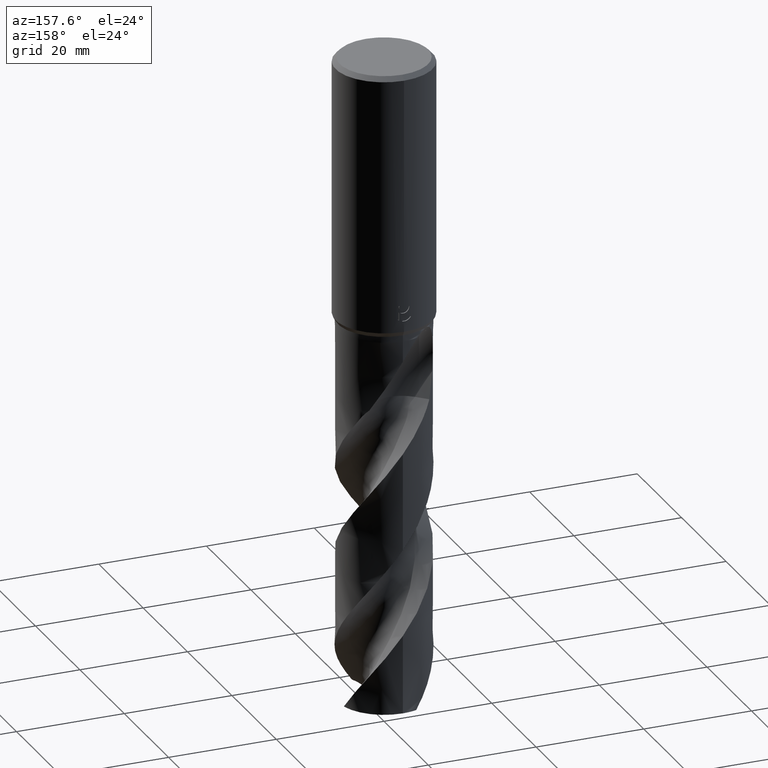
[diagram: clean part render]
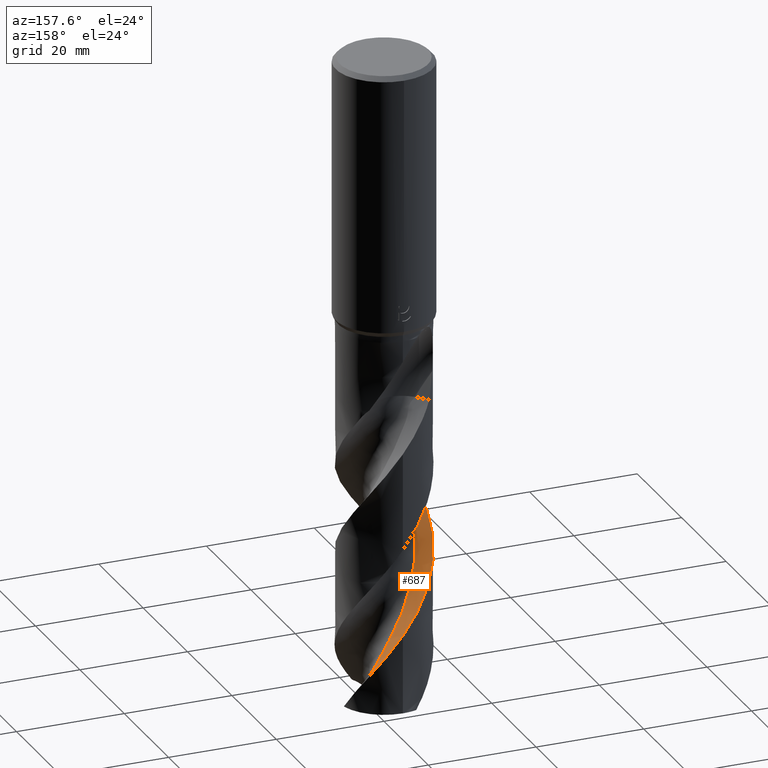
[diagram: same view with one face highlighted and labeled with its STEP entity id]
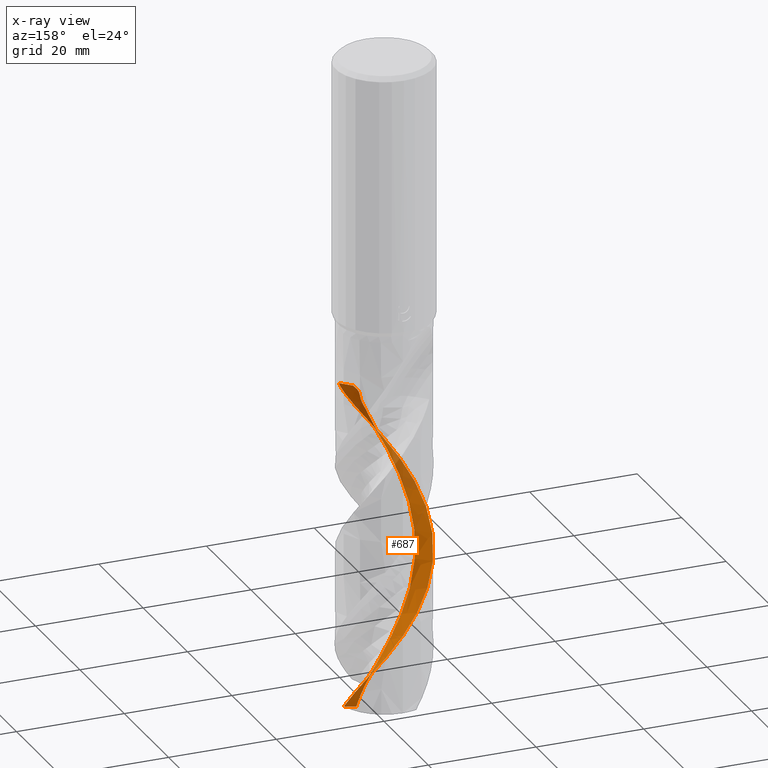
[diagram: x-ray of the same camera — body ghosted, the highlighted face saturated]
A machine part, auxiliary view. The second image highlights one B-rep face of the part: STEP entity #687.
The next image is the same camera in x-ray: the body ghosted, the highlighted face saturated — about 13% of this face is hidden behind the body in this view.
In plain terms, the highlighted face is a freeform B-spline surface patch.
Its self-contained STEP definition (entity closure, byte-faithful):
#283=EDGE_CURVE('',#635,#407,#790,.T.);
#313=VERTEX_POINT('',#822);
#357=VERTEX_POINT('',#874);
#395=EDGE_CURVE('',#629,#635,#915,.T.);
#407=VERTEX_POINT('',#929);
#471=EDGE_CURVE('',#407,#313,#1001,.T.);
#525=VERTEX_POINT('',#1060);
#595=EDGE_CURVE('',#629,#525,#1135,.T.);
#629=VERTEX_POINT('',#1172);
#635=VERTEX_POINT('',#1179);
#687=ADVANCED_FACE('',(#1234),#1235,.F.);
#691=EDGE_CURVE('',#357,#525,#1240,.T.);
#703=EDGE_CURVE('',#313,#357,#1253,.T.);
#790=B_SPLINE_CURVE_WITH_KNOTS('',3,(#1339,#1340,#1341,#1342,#1343,#1344,#1345,#1346,#1347,#1348,#1349,#1350,#1351,#1352,#1353,#1354,#1355,#1356,#1357,#1358,#1359,#1360,#1361,#1362,#1363,#1364,#1365,#1366,#1367,#1368,#1369,#1370,#1371,#1372,#1373,#1374,#1375,#1376,#1377,#1378,#1379,#1380,#1381,#1382,#1383,#1384,#1385,#1386,#1387,#1388,#1389,#1390,#1391,#1392,#1393,#1394,#1395,#1396,#1397,#1398,#1399,#1400,#1401,#1402,#1403,#1404,#1405,#1406,#1407,#1408,#1409,#1410,#1411,#1412,#1413,#1414,#1415,#1416,#1417,#1418,#1419,#1420,#1421,#1422,#1423,#1424,#1425,#1426,#1427,#1428,#1429,#1430,#1431,#1432),.UNSPECIFIED.,.F.,.F.,(4,2,2,2,2,2,2,2,2,2,2,2,2,2,2,2,2,2,2,2,2,2,2,2,2,2,2,2,2,2,2,2,2,2,2,2,2,2,2,2,2,2,2,2,2,2,4),(0.0,0.253812338825228,0.303065578845852,1.36567609173848,1.71326171899132,1.92978585187693,2.12916142015396,2.82857112737733,3.25208007987304,3.41943771975682,3.53627295180757,3.6373375998749,4.26628033938587,5.24139310579664,6.45492818450494,8.06007027447404,10.177408946278,13.0142727150886,15.1197320047132,17.2291037807542,19.3406776822191,21.4411103067526,22.5002501525267,24.5896498980222,26.6998938477559,28.8068497019649,30.9105809895205,31.9688831722978,33.0134464588008,37.1711234728138,37.232298813097,40.7622732599164,42.8632804571982,44.9679447948737,46.0251401485894,47.0655865734501,49.1630739012381,50.221734318632,52.3147113796556,54.4216934030823,56.4229625905072,59.9033582008634,61.21571427922,63.5266076869395,67.0035430962804,68.7426584002347,70.4838142213351),.UNSPECIFIED.);
#822=CARTESIAN_POINT('',(9.25122889855551E-015,8.49997919241051,-105.3604468587));
#874=CARTESIAN_POINT('',(8.27216693933791,1.95480283602333,-119.906253008737));
#915=LINE('',#3097,#3098);
#929=CARTESIAN_POINT('',(-1.28005001507875E-014,-8.4999303640152,-71.2263452663822));
#1001=B_SPLINE_CURVE_WITH_KNOTS('',3,(#4066,#4067,#4068,#4069,#4070,#4071,#4072,#4073,#4074,#4075,#4076,#4077,#4078,#4079,#4080,#4081,#4082,#4083,#4084,#4085,#4086,#4087,#4088,#4089,#4090,#4091,#4092,#4093,#4094,#4095,#4096,#4097,#4098,#4099,#4100,#4101,#4102,#4103,#4104,#4105,#4106,#4107,#4108,#4109,#4110,#4111,#4112,#4113,#4114,#4115,#4116,#4117,#4118,#4119,#4120,#4121,#4122,#4123,#4124,#4125,#4126,#4127,#4128,#4129,#4130,#4131,#4132,#4133,#4134,#4135,#4136,#4137,#4138,#4139,#4140,#4141,#4142,#4143,#4144,#4145,#4146,#4147,#4148,#4149,#4150,#4151,#4152,#4153,#4154,#4155,#4156,#4157,#4158,#4159),.UNSPECIFIED.,.F.,.F.,(4,2,2,2,2,2,2,2,2,2,2,2,2,2,2,2,2,2,2,2,2,2,2,2,2,2,2,2,2,2,2,2,2,2,2,2,2,2,2,2,2,2,2,2,2,2,4),(0.0,0.253812338825228,0.303065578845852,1.36567609173848,1.71326171899132,1.92978585187693,2.12916142015396,2.82857112737733,3.25208007987304,3.41943771975682,3.53627295180757,3.6373375998749,4.26628033938587,5.24139310579664,6.45492818450494,8.06007027447404,10.177408946278,13.0142727150886,15.1197320047132,17.2291037807542,19.3406776822191,21.4411103067526,22.5002501525267,24.5896498980222,26.6998938477559,28.8068497019649,30.9105809895205,31.9688831722978,33.0134464588008,37.1711234728138,37.232298813097,40.7622732599164,42.8632804571982,44.9679447948737,46.0251401485894,47.0655865734501,49.1630739012381,50.221734318632,52.3147113796556,54.4216934030823,56.4229625905072,59.9033582008634,61.21571427922,63.5266076869395,67.0035430962804,68.7426584002347,70.4838142213351),.UNSPECIFIED.);
#1060=CARTESIAN_POINT('',(5.33816353239491,0.455268096738975,-121.050014092925));
#1135=B_SPLINE_CURVE_WITH_KNOTS('',3,(#4468,#4469,#4470,#4471,#4472,#4473,#4474,#4475,#4476,#4477,#4478,#4479,#4480,#4481,#4482,#4483,#4484,#4485,#4486,#4487,#4488,#4489,#4490,#4491,#4492,#4493,#4494,#4495,#4496,#4497,#4498,#4499,#4500,#4501,#4502,#4503,#4504,#4505,#4506,#4507,#4508,#4509,#4510,#4511,#4512,#4513,#4514,#4515,#4516,#4517,#4518,#4519,#4520,#4521,#4522,#4523,#4524,#4525),.UNSPECIFIED.,.F.,.F.,(4,1,2,2,2,2,2,2,1,2,1,2,1,2,1,2,1,2,1,2,1,2,1,2,1,2,1,2,1,2,1,2,1,2,2,4),(0.0,1.39264682957676,2.78529365915353,4.17794048873029,5.57058731830706,6.96323414788382,8.35588097746059,11.1411746366141,13.9264682957676,16.7117619549212,19.4970556140747,22.2823492732282,25.0676429323818,27.8529365915353,30.6382302506888,33.4235239098423,36.2088175689959,38.9941112281494,41.7794048873029,44.5646985464565,47.34999220561,50.1352858647635,52.920579523917,55.7058731830706,58.4911668422241,61.2764605013776,64.0617541605312,66.8470478196847,69.6323414788382,72.4176351379918,75.2029287971453,77.9882224562988,80.7735161154523,83.5588097746059,86.3441034337594,89.1293970929129),.UNSPECIFIED.);
#1172=CARTESIAN_POINT('',(4.00693842901008,-4.20972824098991,-62.857));
#1179=CARTESIAN_POINT('',(5.90809969899241,-6.11088951083082,-62.857));
#1234=FACE_OUTER_BOUND('',#4827,.T.);
#1235=B_SPLINE_SURFACE_WITH_KNOTS('',3,3,((#4828,#4829,#4830,#4831,#4832,#4833,#4834,#4835,#4836,#4837,#4838,#4839,#4840,#4841,#4842,#4843,#4844,#4845,#4846,#4847,#4848,#4849,#4850,#4851,#4852,#4853,#4854,#4855,#4856,#4857,#4858,#4859,#4860,#4861,#4862,#4863,#4864,#4865,#4866,#4867,#4868,#4869,#4870,#4871,#4872,#4873,#4874,#4875,#4876,#4877,#4878,#4879,#4880,#4881,#4882,#4883,#4884,#4885,#4886),(#4887,#4888,#4889,#4890,#4891,#4892,#4893,#4894,#4895,#4896,#4897,#4898,#4899,#4900,#4901,#4902,#4903,#4904,#4905,#4906,#4907,#4908,#4909,#4910,#4911,#4912,#4913,#4914,#4915,#4916,#4917,#4918,#4919,#4920,#4921,#4922,#4923,#4924,#4925,#4926,#4927,#4928,#4929,#4930,#4931,#4932,#4933,#4934,#4935,#4936,#4937,#4938,#4939,#4940,#4941,#4942,#4943,#4944,#4945),(#4946,#4947,#4948,#4949,#4950,#4951,#4952,#4953,#4954,#4955,#4956,#4957,#4958,#4959,#4960,#4961,#4962,#4963,#4964,#4965,#4966,#4967,#4968,#4969,#4970,#4971,#4972,#4973,#4974,#4975,#4976,#4977,#4978,#4979,#4980,#4981,#4982,#4983,#4984,#4985,#4986,#4987,#4988,#4989,#4990,#4991,#4992,#4993,#4994,#4995,#4996,#4997,#4998,#4999,#5000,#5001,#5002,#5003,#5004),(#5005,#5006,#5007,#5008,#5009,#5010,#5011,#5012,#5013,#5014,#5015,#5016,#5017,#5018,#5019,#5020,#5021,#5022,#5023,#5024,#5025,#5026,#5027,#5028,#5029,#5030,#5031,#5032,#5033,#5034,#5035,#5036,#5037,#5038,#5039,#5040,#5041,#5042,#5043,#5044,#5045,#5046,#5047,#5048,#5049,#5050,#5051,#5052,#5053,#5054,#5055,#5056,#5057,#5058,#5059,#5060,#5061,#5062,#5063)),.UNSPECIFIED.,.F.,.F.,.F.,(4,4),(4,1,2,2,2,2,2,2,2,2,1,2,1,2,1,2,1,2,1,2,1,2,1,2,1,2,1,2,1,2,1,2,1,2,2,4),(-2.26836778527417E-015,11.33333333),(0.0,1.39264682957676,2.78529365915353,4.17794048873029,5.57058731830706,6.96323414788382,8.35588097746059,11.1411746366141,13.9264682957676,16.7117619549212,19.4970556140747,22.2823492732282,25.0676429323818,27.8529365915353,30.6382302506888,33.4235239098423,36.2088175689959,38.9941112281494,41.7794048873029,44.5646985464565,47.34999220561,50.1352858647635,52.920579523917,55.7058731830706,58.4911668422241,61.2764605013776,64.0617541605312,66.8470478196847,69.6323414788382,72.4176351379918,75.2029287971453,77.9882224562988,80.7735161154523,83.5588097746059,86.3441034337594,89.1293970929129),.UNSPECIFIED.);
#1240=B_SPLINE_CURVE_WITH_KNOTS('',3,(#5069,#5070,#5071,#5072,#5073,#5074),.UNSPECIFIED.,.F.,.F.,(4,2,4),(0.0,3.80283934181323,7.49932720415845),.UNSPECIFIED.);
#1253=B_SPLINE_CURVE_WITH_KNOTS('',3,(#5093,#5094,#5095,#5096,#5097,#5098,#5099,#5100,#5101,#5102,#5103,#5104,#5105,#5106,#5107,#5108,#5109,#5110,#5111,#5112,#5113,#5114,#5115,#5116,#5117,#5118,#5119,#5120,#5121,#5122,#5123,#5124,#5125,#5126,#5127,#5128,#5129,#5130,#5131,#5132,#5133,#5134,#5135,#5136,#5137,#5138,#5139,#5140,#5141,#5142,#5143,#5144,#5145,#5146,#5147,#5148,#5149,#5150,#5151,#5152,#5153,#5154,#5155,#5156,#5157,#5158,#5159,#5160,#5161,#5162,#5163,#5164,#5165,#5166,#5167,#5168,#5169,#5170,#5171,#5172,#5173,#5174,#5175,#5176,#5177,#5178,#5179,#5180,#5181,#5182,#5183,#5184,#5185,#5186),.UNSPECIFIED.,.F.,.F.,(4,2,2,2,2,2,2,2,2,2,2,2,2,2,2,2,2,2,2,2,2,2,2,2,2,2,2,2,2,2,2,2,2,2,2,2,2,2,2,2,2,2,2,2,2,2,4),(0.0,0.253812338825228,0.303065578845852,1.36567609173848,1.71326171899132,1.92978585187693,2.12916142015396,2.82857112737733,3.25208007987304,3.41943771975682,3.53627295180757,3.6373375998749,4.26628033938587,5.24139310579664,6.45492818450494,8.06007027447404,10.177408946278,13.0142727150886,15.1197320047132,17.2291037807542,19.3406776822191,21.4411103067526,22.5002501525267,24.5896498980222,26.6998938477559,28.8068497019649,30.9105809895205,31.9688831722978,33.0134464588008,37.1711234728138,37.232298813097,40.7622732599164,42.8632804571982,44.9679447948737,46.0251401485894,47.0655865734501,49.1630739012381,50.221734318632,52.3147113796556,54.4216934030823,56.4229625905072,59.9033582008634,61.21571427922,63.5266076869395,67.0035430962804,68.7426584002347,70.4838142213351),.UNSPECIFIED.);
#1339=CARTESIAN_POINT('',(5.90809969899241,-6.11088951083082,-62.857));
#1340=CARTESIAN_POINT('',(5.87221941995721,-6.145579239069,-62.925316061492));
#1341=CARTESIAN_POINT('',(5.83596911618663,-6.18001599994499,-62.9936082539407));
#1342=CARTESIAN_POINT('',(5.7921701352408,-6.22089044168041,-63.0750555366095));
#1343=CARTESIAN_POINT('',(5.78503677068821,-6.22752461877753,-63.0882874430771));
#1344=CARTESIAN_POINT('',(5.62363951824768,-6.37711014528268,-63.3868998386653));
#1345=CARTESIAN_POINT('',(5.46527350919119,-6.51362064005351,-63.6634205156913));
#1346=CARTESIAN_POINT('',(5.23819320632168,-6.69440748787941,-64.0351454182138));
#1347=CARTESIAN_POINT('',(5.18148608411984,-6.73840222266121,-64.1261825128578));
#1348=CARTESIAN_POINT('',(5.08793784149738,-6.80907929835932,-64.273862093571));
#1349=CARTESIAN_POINT('',(5.05175264424232,-6.83597005995964,-64.3303985998281));
#1350=CARTESIAN_POINT('',(4.98165780018234,-6.88719600824686,-64.4389484273218));
#1351=CARTESIAN_POINT('',(4.94784040808438,-6.91153154019764,-64.4908950024641));
#1352=CARTESIAN_POINT('',(4.79437972609713,-7.02025642589189,-64.7250587361678));
#1353=CARTESIAN_POINT('',(4.67361438146723,-7.1012888943086,-64.905627342545));
#1354=CARTESIAN_POINT('',(4.47099726746775,-7.22959434886809,-65.2069165852423));
#1355=CARTESIAN_POINT('',(4.3940433507114,-7.27661598536318,-65.3207425051398));
#1356=CARTESIAN_POINT('',(4.28597798060233,-7.34032231426754,-65.4798705432019));
#1357=CARTESIAN_POINT('',(4.2552933165863,-7.35815281245432,-65.5249744595825));
#1358=CARTESIAN_POINT('',(4.20306133413856,-7.38806924691532,-65.6016243126691));
#1359=CARTESIAN_POINT('',(4.18155252927505,-7.4002641132044,-65.633151923513));
#1360=CARTESIAN_POINT('',(4.14137309805008,-7.42281396434356,-65.6919822573237));
#1361=CARTESIAN_POINT('',(4.12269627746965,-7.43320349279,-65.7193017923561));
#1362=CARTESIAN_POINT('',(3.98754937621571,-7.50771708964857,-65.9167626033651));
#1363=CARTESIAN_POINT('',(3.86979129201419,-7.56908062718017,-66.0875942848129));
#1364=CARTESIAN_POINT('',(3.56638341412379,-7.71828068779252,-66.5227065799647));
#1365=CARTESIAN_POINT('',(3.37838864742629,-7.80241699406583,-66.7872003345984));
#1366=CARTESIAN_POINT('',(2.94937044697491,-7.97595010168719,-67.3800236145523));
#1367=CARTESIAN_POINT('',(2.70750701342107,-8.06127493972823,-67.7063472645214));
#1368=CARTESIAN_POINT('',(2.13629072857626,-8.23410653828333,-68.467147457639));
#1369=CARTESIAN_POINT('',(1.80569917522044,-8.31283734512631,-68.9007158760712));
#1370=CARTESIAN_POINT('',(1.03094803126507,-8.44903114569381,-69.906276999625));
#1371=CARTESIAN_POINT('',(0.584963377657782,-8.49155880373193,-70.4778408960726));
#1372=CARTESIAN_POINT('',(-0.461183105342847,-8.50853021261238,-71.8165189970591));
#1373=CARTESIAN_POINT('',(-1.05979886393022,-8.45489361666248,-72.5794881450679));
#1374=CARTESIAN_POINT('',(-2.08462972373293,-8.25234823191746,-73.9141452592203));
#1375=CARTESIAN_POINT('',(-2.51355841414536,-8.13194929318475,-74.4820477948442));
#1376=CARTESIAN_POINT('',(-3.34902310899705,-7.82504840117884,-75.6208809298899));
#1377=CARTESIAN_POINT('',(-3.75461415872712,-7.63875563618499,-76.1899767533334));
#1378=CARTESIAN_POINT('',(-4.53356750927657,-7.2038131404849,-77.3298419294142));
#1379=CARTESIAN_POINT('',(-4.9053818907949,-6.95594712349335,-77.8984444527642));
#1380=CARTESIAN_POINT('',(-5.60469292730857,-6.40572575023969,-79.0363518291564));
#1381=CARTESIAN_POINT('',(-5.93147083560172,-6.10440081622136,-79.6033766891432));
#1382=CARTESIAN_POINT('',(-6.38543437784608,-5.61474558981044,-80.4568345419361));
#1383=CARTESIAN_POINT('',(-6.53109397402557,-5.44462986175383,-80.7427455674731));
#1384=CARTESIAN_POINT('',(-6.94369905911902,-4.92231872040457,-81.5930334774485));
#1385=CARTESIAN_POINT('',(-7.18995846551699,-4.55503722927414,-82.156486580894));
#1386=CARTESIAN_POINT('',(-7.62520826627304,-3.78206282165088,-83.2912441824827));
#1387=CARTESIAN_POINT('',(-7.81310566916568,-3.3769065275112,-83.8605722994067));
#1388=CARTESIAN_POINT('',(-8.12341948015603,-2.54117726527552,-84.9995536923245));
#1389=CARTESIAN_POINT('',(-8.24534222333018,-2.11225380917475,-85.5672134947889));
#1390=CARTESIAN_POINT('',(-8.42072742202597,-1.24018382942739,-86.7049796632484));
#1391=CARTESIAN_POINT('',(-8.47407156643389,-0.798154001610021,-87.2728414037304));
#1392=CARTESIAN_POINT('',(-8.50189812166223,-0.13036648646712,-88.1270011270703));
#1393=CARTESIAN_POINT('',(-8.50238619341968,0.0934482672083988,-88.412692293229));
#1394=CARTESIAN_POINT('',(-8.48580238755177,0.537757980361258,-88.9806329050842));
#1395=CARTESIAN_POINT('',(-8.46896952717347,0.757983309321364,-89.2625165778892));
#1396=CARTESIAN_POINT('',(-8.34257238832857,1.85007428240777,-90.668147889667));
#1397=CARTESIAN_POINT('',(-8.10676818565891,2.702313422458,-91.7854907198422));
#1398=CARTESIAN_POINT('',(-7.73909974100459,3.51508839003729,-92.9251221288822));
#1399=CARTESIAN_POINT('',(-7.73374133167869,3.5268621497238,-92.9416479860593));
#1400=CARTESIAN_POINT('',(-7.41760635866252,4.21730439565658,-93.9118590164474));
#1401=CARTESIAN_POINT('',(-7.01869939347152,4.85228760205054,-94.8638005066901));
#1402=CARTESIAN_POINT('',(-6.25828644975488,5.76894744472072,-96.3853537285009));
#1403=CARTESIAN_POINT('',(-5.94829375529442,6.08805650388338,-96.9518425653425));
#1404=CARTESIAN_POINT('',(-5.28095473012102,6.67524250174718,-98.0888494658464));
#1405=CARTESIAN_POINT('',(-4.92433332623784,6.942517686382,-98.6571727359034));
#1406=CARTESIAN_POINT('',(-4.35942156407616,7.30033823528949,-99.5116815189191));
#1407=CARTESIAN_POINT('',(-4.16586953384112,7.41249326951101,-99.7972045671908));
#1408=CARTESIAN_POINT('',(-3.7734554819489,7.61964571150117,-100.364016614331));
#1409=CARTESIAN_POINT('',(-3.57497101094187,7.71475842321191,-100.64498384878));
#1410=CARTESIAN_POINT('',(-2.96604560489068,7.97801725971756,-101.493309392303));
#1411=CARTESIAN_POINT('',(-2.54580644724933,8.1218950495146,-102.059999387661));
#1412=CARTESIAN_POINT('',(-1.89938895199495,8.28806544774412,-102.913165550916));
#1413=CARTESIAN_POINT('',(-1.68040280270101,8.33522647762051,-103.199161154255));
#1414=CARTESIAN_POINT('',(-1.02356420955399,8.44973282036625,-104.050896870078));
#1415=CARTESIAN_POINT('',(-0.582266586388124,8.49154496656705,-104.615554323127));
#1416=CARTESIAN_POINT('',(0.305428698054603,8.50615891983376,-105.751205644429));
#1417=CARTESIAN_POINT('',(0.750808229081608,8.47847962047964,-106.320127534843));
#1418=CARTESIAN_POINT('',(1.61128219980835,8.35659570851312,-107.43050734003));
#1419=CARTESIAN_POINT('',(2.02528973771725,8.26601170589115,-107.970027618479));
#1420=CARTESIAN_POINT('',(3.1358796079831,7.93457604604338,-109.452225054721));
#1421=CARTESIAN_POINT('',(3.81101649213268,7.63336306339839,-110.389914691239));
#1422=CARTESIAN_POINT('',(4.67583907199514,7.10376210297291,-111.685340037973));
#1423=CARTESIAN_POINT('',(4.90530896859703,6.94728399852131,-112.039817871555));
#1424=CARTESIAN_POINT('',(5.51639897976227,6.48520887420825,-113.0196031138));
#1425=CARTESIAN_POINT('',(5.88014165366469,6.15734064772561,-113.643654202075));
#1426=CARTESIAN_POINT('',(6.71573445938124,5.2621268736596,-115.208245525064));
#1427=CARTESIAN_POINT('',(7.14555889956199,4.66166377353577,-116.144133002908));
#1428=CARTESIAN_POINT('',(7.66623039907614,3.68971653077916,-117.554947437413));
#1429=CARTESIAN_POINT('',(7.81869723286407,3.35459594488495,-118.024733464662));
#1430=CARTESIAN_POINT('',(8.07948876368433,2.6659974596805,-118.965563842085));
#1431=CARTESIAN_POINT('',(8.18743640933608,2.31335529630479,-119.435593744299));
#1432=CARTESIAN_POINT('',(8.27216693933794,1.95480283602327,-119.906253008737));
#3097=CARTESIAN_POINT('',(4.00693842908079,-4.2097282409192,-62.857));
#3098=VECTOR('',#5712,0.999999999999999);
#4066=CARTESIAN_POINT('',(5.90809969899241,-6.11088951083082,-62.857));
#4067=CARTESIAN_POINT('',(5.87221941995721,-6.145579239069,-62.925316061492));
#4068=CARTESIAN_POINT('',(5.83596911618663,-6.18001599994499,-62.9936082539407));
#4069=CARTESIAN_POINT('',(5.7921701352408,-6.22089044168041,-63.0750555366095));
#4070=CARTESIAN_POINT('',(5.78503677068821,-6.22752461877753,-63.0882874430771));
#4071=CARTESIAN_POINT('',(5.62363951824768,-6.37711014528268,-63.3868998386653));
#4072=CARTESIAN_POINT('',(5.46527350919119,-6.51362064005351,-63.6634205156913));
#4073=CARTESIAN_POINT('',(5.23819320632168,-6.69440748787941,-64.0351454182138));
#4074=CARTESIAN_POINT('',(5.18148608411984,-6.73840222266121,-64.1261825128578));
#4075=CARTESIAN_POINT('',(5.08793784149738,-6.80907929835932,-64.273862093571));
#4076=CARTESIAN_POINT('',(5.05175264424232,-6.83597005995964,-64.3303985998281));
#4077=CARTESIAN_POINT('',(4.98165780018234,-6.88719600824686,-64.4389484273218));
#4078=CARTESIAN_POINT('',(4.94784040808438,-6.91153154019764,-64.4908950024641));
#4079=CARTESIAN_POINT('',(4.79437972609713,-7.02025642589189,-64.7250587361678));
#4080=CARTESIAN_POINT('',(4.67361438146723,-7.1012888943086,-64.905627342545));
#4081=CARTESIAN_POINT('',(4.47099726746775,-7.22959434886809,-65.2069165852423));
#4082=CARTESIAN_POINT('',(4.3940433507114,-7.27661598536318,-65.3207425051398));
#4083=CARTESIAN_POINT('',(4.28597798060233,-7.34032231426754,-65.4798705432019));
#4084=CARTESIAN_POINT('',(4.2552933165863,-7.35815281245432,-65.5249744595825));
#4085=CARTESIAN_POINT('',(4.20306133413856,-7.38806924691532,-65.6016243126691));
#4086=CARTESIAN_POINT('',(4.18155252927505,-7.4002641132044,-65.633151923513));
#4087=CARTESIAN_POINT('',(4.14137309805008,-7.42281396434356,-65.6919822573237));
#4088=CARTESIAN_POINT('',(4.12269627746965,-7.43320349279,-65.7193017923561));
#4089=CARTESIAN_POINT('',(3.98754937621571,-7.50771708964857,-65.9167626033651));
#4090=CARTESIAN_POINT('',(3.86979129201419,-7.56908062718017,-66.0875942848129));
#4091=CARTESIAN_POINT('',(3.56638341412379,-7.71828068779252,-66.5227065799647));
#4092=CARTESIAN_POINT('',(3.37838864742629,-7.80241699406583,-66.7872003345984));
#4093=CARTESIAN_POINT('',(2.94937044697491,-7.97595010168719,-67.3800236145523));
#4094=CARTESIAN_POINT('',(2.70750701342107,-8.06127493972823,-67.7063472645214));
#4095=CARTESIAN_POINT('',(2.13629072857626,-8.23410653828333,-68.467147457639));
#4096=CARTESIAN_POINT('',(1.80569917522044,-8.31283734512631,-68.9007158760712));
#4097=CARTESIAN_POINT('',(1.03094803126507,-8.44903114569381,-69.906276999625));
#4098=CARTESIAN_POINT('',(0.584963377657782,-8.49155880373193,-70.4778408960726));
#4099=CARTESIAN_POINT('',(-0.461183105342847,-8.50853021261238,-71.8165189970591));
#4100=CARTESIAN_POINT('',(-1.05979886393022,-8.45489361666248,-72.5794881450679));
#4101=CARTESIAN_POINT('',(-2.08462972373293,-8.25234823191746,-73.9141452592203));
#4102=CARTESIAN_POINT('',(-2.51355841414536,-8.13194929318475,-74.4820477948442));
#4103=CARTESIAN_POINT('',(-3.34902310899705,-7.82504840117884,-75.6208809298899));
#4104=CARTESIAN_POINT('',(-3.75461415872712,-7.63875563618499,-76.1899767533334));
#4105=CARTESIAN_POINT('',(-4.53356750927657,-7.2038131404849,-77.3298419294142));
#4106=CARTESIAN_POINT('',(-4.9053818907949,-6.95594712349335,-77.8984444527642));
#4107=CARTESIAN_POINT('',(-5.60469292730857,-6.40572575023969,-79.0363518291564));
#4108=CARTESIAN_POINT('',(-5.93147083560172,-6.10440081622136,-79.6033766891432));
#4109=CARTESIAN_POINT('',(-6.38543437784608,-5.61474558981044,-80.4568345419361));
#4110=CARTESIAN_POINT('',(-6.53109397402557,-5.44462986175383,-80.7427455674731));
#4111=CARTESIAN_POINT('',(-6.94369905911902,-4.92231872040457,-81.5930334774485));
#4112=CARTESIAN_POINT('',(-7.18995846551699,-4.55503722927414,-82.156486580894));
#4113=CARTESIAN_POINT('',(-7.62520826627304,-3.78206282165088,-83.2912441824827));
#4114=CARTESIAN_POINT('',(-7.81310566916568,-3.3769065275112,-83.8605722994067));
#4115=CARTESIAN_POINT('',(-8.12341948015603,-2.54117726527552,-84.9995536923245));
#4116=CARTESIAN_POINT('',(-8.24534222333018,-2.11225380917475,-85.5672134947889));
#4117=CARTESIAN_POINT('',(-8.42072742202597,-1.24018382942739,-86.7049796632484));
#4118=CARTESIAN_POINT('',(-8.47407156643389,-0.798154001610021,-87.2728414037304));
#4119=CARTESIAN_POINT('',(-8.50189812166223,-0.13036648646712,-88.1270011270703));
#4120=CARTESIAN_POINT('',(-8.50238619341968,0.0934482672083988,-88.412692293229));
#4121=CARTESIAN_POINT('',(-8.48580238755177,0.537757980361258,-88.9806329050842));
#4122=CARTESIAN_POINT('',(-8.46896952717347,0.757983309321364,-89.2625165778892));
#4123=CARTESIAN_POINT('',(-8.34257238832857,1.85007428240777,-90.668147889667));
#4124=CARTESIAN_POINT('',(-8.10676818565891,2.702313422458,-91.7854907198422));
#4125=CARTESIAN_POINT('',(-7.73909974100459,3.51508839003729,-92.9251221288822));
#4126=CARTESIAN_POINT('',(-7.73374133167869,3.5268621497238,-92.9416479860593));
#4127=CARTESIAN_POINT('',(-7.41760635866252,4.21730439565658,-93.9118590164474));
#4128=CARTESIAN_POINT('',(-7.01869939347152,4.85228760205054,-94.8638005066901));
#4129=CARTESIAN_POINT('',(-6.25828644975488,5.76894744472072,-96.3853537285009));
#4130=CARTESIAN_POINT('',(-5.94829375529442,6.08805650388338,-96.9518425653425));
#4131=CARTESIAN_POINT('',(-5.28095473012102,6.67524250174718,-98.0888494658464));
#4132=CARTESIAN_POINT('',(-4.92433332623784,6.942517686382,-98.6571727359034));
#4133=CARTESIAN_POINT('',(-4.35942156407616,7.30033823528949,-99.5116815189191));
#4134=CARTESIAN_POINT('',(-4.16586953384112,7.41249326951101,-99.7972045671908));
#4135=CARTESIAN_POINT('',(-3.7734554819489,7.61964571150117,-100.364016614331));
#4136=CARTESIAN_POINT('',(-3.57497101094187,7.71475842321191,-100.64498384878));
#4137=CARTESIAN_POINT('',(-2.96604560489068,7.97801725971756,-101.493309392303));
#4138=CARTESIAN_POINT('',(-2.54580644724933,8.1218950495146,-102.059999387661));
#4139=CARTESIAN_POINT('',(-1.89938895199495,8.28806544774412,-102.913165550916));
#4140=CARTESIAN_POINT('',(-1.68040280270101,8.33522647762051,-103.199161154255));
#4141=CARTESIAN_POINT('',(-1.02356420955399,8.44973282036625,-104.050896870078));
#4142=CARTESIAN_POINT('',(-0.582266586388124,8.49154496656705,-104.615554323127));
#4143=CARTESIAN_POINT('',(0.305428698054603,8.50615891983376,-105.751205644429));
#4144=CARTESIAN_POINT('',(0.750808229081608,8.47847962047964,-106.320127534843));
#4145=CARTESIAN_POINT('',(1.61128219980835,8.35659570851312,-107.43050734003));
#4146=CARTESIAN_POINT('',(2.02528973771725,8.26601170589115,-107.970027618479));
#4147=CARTESIAN_POINT('',(3.1358796079831,7.93457604604338,-109.452225054721));
#4148=CARTESIAN_POINT('',(3.81101649213268,7.63336306339839,-110.389914691239));
#4149=CARTESIAN_POINT('',(4.67583907199514,7.10376210297291,-111.685340037973));
#4150=CARTESIAN_POINT('',(4.90530896859703,6.94728399852131,-112.039817871555));
#4151=CARTESIAN_POINT('',(5.51639897976227,6.48520887420825,-113.0196031138));
#4152=CARTESIAN_POINT('',(5.88014165366469,6.15734064772561,-113.643654202075));
#4153=CARTESIAN_POINT('',(6.71573445938124,5.2621268736596,-115.208245525064));
#4154=CARTESIAN_POINT('',(7.14555889956199,4.66166377353577,-116.144133002908));
#4155=CARTESIAN_POINT('',(7.66623039907614,3.68971653077916,-117.554947437413));
#4156=CARTESIAN_POINT('',(7.81869723286407,3.35459594488495,-118.024733464662));
#4157=CARTESIAN_POINT('',(8.07948876368433,2.6659974596805,-118.965563842085));
#4158=CARTESIAN_POINT('',(8.18743640933608,2.31335529630479,-119.435593744299));
#4159=CARTESIAN_POINT('',(8.27216693933794,1.95480283602327,-119.906253008737));
#4468=CARTESIAN_POINT('',(4.00693842901008,-4.20972824098992,-62.857));
#4469=CARTESIAN_POINT('',(3.65984104918492,-4.18786233762803,-63.1696794503655));
#4470=CARTESIAN_POINT('',(3.09501060321458,-4.21055960431933,-63.7929451400089));
#4471=CARTESIAN_POINT('',(2.78921353886952,-4.35179866144113,-64.4148918148297));
#4472=CARTESIAN_POINT('',(2.5996587298484,-4.56395608862217,-65.0423158654704));
#4473=CARTESIAN_POINT('',(2.50308660989187,-4.66757694154285,-65.3568075879027));
#4474=CARTESIAN_POINT('',(2.3033453533389,-4.86846843421426,-65.988277164371));
#4475=CARTESIAN_POINT('',(2.17626714289894,-4.9460592779832,-66.3035484666409));
#4476=CARTESIAN_POINT('',(1.88305732636267,-5.05446347388528,-66.9301269032009));
#4477=CARTESIAN_POINT('',(1.72919933641693,-5.09750457136558,-67.2428664731376));
#4478=CARTESIAN_POINT('',(1.41261752895809,-5.16293196955739,-67.8666317228425));
#4479=CARTESIAN_POINT('',(1.25880931759026,-5.19568626956855,-68.1789953746642));
#4480=CARTESIAN_POINT('',(0.80789217370501,-5.2946591521161,-69.1187872672221));
#4481=CARTESIAN_POINT('',(0.500913404974919,-5.33318131840108,-69.7455363588949));
#4482=CARTESIAN_POINT('',(-0.111296716133378,-5.36539784833883,-70.9998973938004));
#4483=CARTESIAN_POINT('',(-0.73269106054567,-5.33011527465248,-72.2532069786753));
#4484=CARTESIAN_POINT('',(-1.3369788120356,-5.19023031212156,-73.5053708381244));
#4485=CARTESIAN_POINT('',(-1.92399616320667,-5.01062373020667,-74.758708188657));
#4486=CARTESIAN_POINT('',(-2.49634029739623,-4.7648363006135,-76.0123285648964));
#4487=CARTESIAN_POINT('',(-3.01719800942331,-4.42626138941011,-77.2650264969794));
#4488=CARTESIAN_POINT('',(-3.50913912058755,-4.06037042495723,-78.5181309140198));
#4489=CARTESIAN_POINT('',(-3.96480328113875,-3.6366162011657,-79.7716597423359));
#4490=CARTESIAN_POINT('',(-4.34003405063679,-3.14152863064224,-81.0243947440103));
#4491=CARTESIAN_POINT('',(-4.67832611346763,-2.6299055431285,-82.2775175708892));
#4492=CARTESIAN_POINT('',(-4.96295402415999,-2.07636463090336,-83.531040564995));
#4493=CARTESIAN_POINT('',(-5.14801273552598,-1.48335449483331,-84.7837654407326));
#4494=CARTESIAN_POINT('',(-5.2928642530549,-0.887411753957014,-86.036896786849));
#4495=CARTESIAN_POINT('',(-5.37297841989246,-0.270191359452362,-87.2904303476237));
#4496=CARTESIAN_POINT('',(-5.34595729798966,0.350442902765231,-88.5431614647179));
#4497=CARTESIAN_POINT('',(-5.28008738012695,0.960206387351042,-89.7962933063274));
#4498=CARTESIAN_POINT('',(-5.14612614017306,1.56802163329126,-91.0498245523596));
#4499=CARTESIAN_POINT('',(-4.9102792787325,2.1427096326873,-92.3025535404802));
#4500=CARTESIAN_POINT('',(-4.64159565033382,2.69400253659606,-93.555686371229));
#4501=CARTESIAN_POINT('',(-4.30948291729954,3.22037370068403,-94.8092196085211));
#4502=CARTESIAN_POINT('',(-3.89270576472315,3.68101698937287,-96.0619466742267));
#4503=CARTESIAN_POINT('',(-3.45296179050247,4.10850745695292,-97.3150731794714));
#4504=CARTESIAN_POINT('',(-2.96200039985883,4.49103915903773,-98.5686021008162));
#4505=CARTESIAN_POINT('',(-2.41367155658567,4.78301290134013,-99.8213276702572));
#4506=CARTESIAN_POINT('',(-1.85497369964872,5.03599919004504,-101.074453015107));
#4507=CARTESIAN_POINT('',(-1.26335855660881,5.22933352404401,-102.327984362802));
#4508=CARTESIAN_POINT('',(-0.648498328813977,5.31803645511694,-103.580719591293));
#4509=CARTESIAN_POINT('',(-0.0371015149232863,5.36654218039584,-104.83385750535));
#4510=CARTESIAN_POINT('',(0.585021903132003,5.34778712842154,-106.087383204703));
#4511=CARTESIAN_POINT('',(1.19350050017671,5.22281239310033,-107.340095846907));
#4512=CARTESIAN_POINT('',(1.78508711917062,5.06126051017718,-108.59321393002));
#4513=CARTESIAN_POINT('',(2.36398066328414,4.83267625642503,-109.846771360543));
#4514=CARTESIAN_POINT('',(2.89399902560033,4.50846865681145,-111.099547710903));
#4515=CARTESIAN_POINT('',(3.39566387877767,4.15542728114882,-112.352707746874));
#4516=CARTESIAN_POINT('',(3.86273634698546,3.74414936282149,-113.606147805828));
#4517=CARTESIAN_POINT('',(4.25187403778358,3.26048279135427,-114.858766147619));
#4518=CARTESIAN_POINT('',(4.6048838247155,2.75959969937876,-116.111889458381));
#4519=CARTESIAN_POINT('',(4.9045327065129,2.21373249645864,-117.365761374983));
#4520=CARTESIAN_POINT('',(5.10347334692121,1.62353965416171,-118.618787139));
#4521=CARTESIAN_POINT('',(5.26139829478524,1.02909878387633,-119.871833339778));
#4522=CARTESIAN_POINT('',(5.31242578901839,0.723869668146197,-120.498008124129));
#4523=CARTESIAN_POINT('',(5.37102415551902,0.114718928326443,-121.749877345486));
#4524=CARTESIAN_POINT('',(5.35924389360527,-0.199733075779648,-122.376310974115));
#4525=CARTESIAN_POINT('',(5.31189294205279,-0.513190643177694,-123.002154432119));
#4827=EDGE_LOOP('',(#6068,#6069,#6070,#6071,#6072,#6073));
#4828=CARTESIAN_POINT('',(4.00693842908079,-4.20972824091921,-62.857));
#4829=CARTESIAN_POINT('',(3.65984104925151,-4.18786233756556,-63.1696794503645));
#4830=CARTESIAN_POINT('',(3.0950106032894,-4.21055960424423,-63.7929451400093));
#4831=CARTESIAN_POINT('',(2.78921353894271,-4.35179866137771,-64.4148918148295));
#4832=CARTESIAN_POINT('',(2.59965872992984,-4.56395608855875,-65.0423158654703));
#4833=CARTESIAN_POINT('',(2.50308660997523,-4.6675769414835,-65.3568075879005));
#4834=CARTESIAN_POINT('',(2.30334535342226,-4.86846843416315,-65.988277164373));
#4835=CARTESIAN_POINT('',(2.17626714298713,-4.94605927793604,-66.303548466643));
#4836=CARTESIAN_POINT('',(1.88305732645085,-5.05446347383812,-66.9301269031989));
#4837=CARTESIAN_POINT('',(1.72919933651697,-5.09750457133002,-67.2428664731335));
#4838=CARTESIAN_POINT('',(1.41261752904164,-5.16293196951358,-67.8666317228465));
#4839=CARTESIAN_POINT('',(1.25880931768917,-5.19568626953257,-68.1789953746641));
#4840=CARTESIAN_POINT('',(0.807892173791557,-5.2946591520925,-69.118787267222));
#4841=CARTESIAN_POINT('',(0.500913405090285,-5.3331813183861,-69.7455363588948));
#4842=CARTESIAN_POINT('',(-0.111296716050997,-5.36539784832386,-70.9998973938003));
#4843=CARTESIAN_POINT('',(-0.422134951197761,-5.34737116660736,-71.6267474509659));
#4844=CARTESIAN_POINT('',(-1.03469387323245,-5.26055818827988,-72.8790936436717));
#4845=CARTESIAN_POINT('',(-1.33697881192102,-5.19023031213279,-73.5053708381244));
#4846=CARTESIAN_POINT('',(-1.92399616312507,-5.01062373023438,-74.758708188657));
#4847=CARTESIAN_POINT('',(-2.49634029729332,-4.76483630065007,-76.0123285649046));
#4848=CARTESIAN_POINT('',(-3.01719800933763,-4.42626138945343,-77.2650264969628));
#4849=CARTESIAN_POINT('',(-3.50913912050187,-4.06037042501704,-78.5181309140362));
#4850=CARTESIAN_POINT('',(-3.96480328107448,-3.6366162012281,-79.7716597423111));
#4851=CARTESIAN_POINT('',(-4.34003405054894,-3.14152863071981,-81.0243947440432));
#4852=CARTESIAN_POINT('',(-4.67832611342926,-2.62990554320607,-82.2775175708562));
#4853=CARTESIAN_POINT('',(-4.96295402409807,-2.07636463100018,-83.5310405649949));
#4854=CARTESIAN_POINT('',(-5.14801273549292,-1.4833544949112,-84.7837654407655));
#4855=CARTESIAN_POINT('',(-5.29286425302183,-0.88741175406788,-86.0368967868159));
#4856=CARTESIAN_POINT('',(-5.37297841988001,-0.270191359544247,-87.2904303476402));
#4857=CARTESIAN_POINT('',(-5.34595729798231,0.350442902665234,-88.5431614647178));
#4858=CARTESIAN_POINT('',(-5.28008738013609,0.960206387251046,-89.7962933063274));
#4859=CARTESIAN_POINT('',(-5.14612614019143,1.56802163319969,-91.0498245523595));
#4860=CARTESIAN_POINT('',(-4.91027927875901,2.14270963257704,-92.3025535404801));
#4861=CARTESIAN_POINT('',(-4.64159565037682,2.69400253651879,-93.5556863712289));
#4862=CARTESIAN_POINT('',(-4.30948291734655,3.22037370058811,-94.809219608521));
#4863=CARTESIAN_POINT('',(-3.89270576478764,3.68101698929645,-96.0619466742267));
#4864=CARTESIAN_POINT('',(-3.45296179056697,4.1085074568765,-97.3150731794714));
#4865=CARTESIAN_POINT('',(-2.96200039994491,4.49103915897672,-98.5686021008162));
#4866=CARTESIAN_POINT('',(-2.41367155665577,4.78301290128187,-99.8213276702572));
#4867=CARTESIAN_POINT('',(-1.85497369975181,5.03599919000327,-101.074453015107));
#4868=CARTESIAN_POINT('',(-1.26335855669588,5.22933352400913,-102.327984362802));
#4869=CARTESIAN_POINT('',(-0.648498328912399,5.31803645509101,-103.580719591293));
#4870=CARTESIAN_POINT('',(-0.0371015150217089,5.3665421803864,-104.83385750535));
#4871=CARTESIAN_POINT('',(0.585021903030509,5.34778712841692,-106.087383204703));
#4872=CARTESIAN_POINT('',(1.19350050007812,5.22281239311707,-107.340095846907));
#4873=CARTESIAN_POINT('',(1.78508711907203,5.06126051019392,-108.59321393002));
#4874=CARTESIAN_POINT('',(2.36398066318025,4.83267625646312,-109.846771360543));
#4875=CARTESIAN_POINT('',(2.89399902552976,4.50846865685239,-111.099547710903));
#4876=CARTESIAN_POINT('',(3.3956638786741,4.15542728120624,-112.352707746874));
#4877=CARTESIAN_POINT('',(3.86273634691112,3.74414936288175,-113.606147805795));
#4878=CARTESIAN_POINT('',(4.25187403772661,3.26048279143007,-114.858766147685));
#4879=CARTESIAN_POINT('',(4.60488382464204,2.75959969945457,-116.111889458315));
#4880=CARTESIAN_POINT('',(4.90453270646921,2.21373249654171,-117.365761375049));
#4881=CARTESIAN_POINT('',(5.10347334687726,1.62353965426336,-118.618787138934));
#4882=CARTESIAN_POINT('',(5.26139829475779,1.0290987839615,-119.871833339844));
#4883=CARTESIAN_POINT('',(5.3124257889994,0.723869668252623,-120.498008124195));
#4884=CARTESIAN_POINT('',(5.37102415550003,0.114718928416377,-121.74987734542));
#4885=CARTESIAN_POINT('',(5.35924389360318,-0.199733075646686,-122.376310974115));
#4886=CARTESIAN_POINT('',(5.3118929420507,-0.513190643077717,-123.002154432119));
#4887=CARTESIAN_POINT('',(6.67823071280876,-6.88102052458007,-62.8570000000252));
#4888=CARTESIAN_POINT('',(6.33272629206147,-6.85756166214443,-63.1696362658873));
#4889=CARTESIAN_POINT('',(5.72663808301348,-6.92266371403222,-63.7903721166973));
#4890=CARTESIAN_POINT('',(5.28311184802962,-7.192233124978,-64.4082324731792));
#4891=CARTESIAN_POINT('',(4.89776465791087,-7.56500699493285,-65.0361773857706));
#4892=CARTESIAN_POINT('',(4.69785905799497,-7.74514593084746,-65.3516836063972));
#4893=CARTESIAN_POINT('',(4.28155542700993,-8.08951806885828,-65.9870747562349));
#4894=CARTESIAN_POINT('',(4.0525539393816,-8.22671303324585,-66.3039034673528));
#4895=CARTESIAN_POINT('',(3.56993198911565,-8.43641428687562,-66.9304812808681));
#4896=CARTESIAN_POINT('',(3.32189910769439,-8.5246502559386,-67.2427956702269));
#4897=CARTESIAN_POINT('',(2.81798581060958,-8.67105860360872,-67.8643497488117));
#4898=CARTESIAN_POINT('',(2.56554758151543,-8.7419485090387,-68.1759855782771));
#4899=CARTESIAN_POINT('',(1.80385388688323,-8.94533334086065,-69.115732611911));
#4900=CARTESIAN_POINT('',(1.2843138432535,-9.03539070225969,-69.7426274735546));
#4901=CARTESIAN_POINT('',(0.236745372657906,-9.13354548917377,-70.9979635670163));
#4902=CARTESIAN_POINT('',(-0.291285725450594,-9.12912891898656,-71.6250389818435));
#4903=CARTESIAN_POINT('',(-1.33826968210443,-9.03238031203662,-72.8767646261007));
#4904=CARTESIAN_POINT('',(-1.8570729979533,-8.93847916151088,-73.5028152065185));
#4905=CARTESIAN_POINT('',(-2.8750550162234,-8.67331975812293,-74.7563157936911));
#4906=CARTESIAN_POINT('',(-3.86459725072762,-8.30594939039459,-76.0103250070953));
#4907=CARTESIAN_POINT('',(-4.77648199253326,-7.77663463918947,-77.2626810664388));
#4908=CARTESIAN_POINT('',(-5.64571032996968,-7.18369085403451,-78.5157655462126));
#4909=CARTESIAN_POINT('',(-6.4531954681041,-6.50363175336475,-79.7696106720655));
#4910=CARTESIAN_POINT('',(-7.13157132448354,-5.69639416712517,-81.0220312861883));
#4911=CARTESIAN_POINT('',(-7.74757875536001,-4.8434295583461,-82.2751516208388));
#4912=CARTESIAN_POINT('',(-8.27613872663057,-3.92963434663487,-83.5289837173339));
#4913=CARTESIAN_POINT('',(-8.64052326902252,-2.94019822386709,-84.7813882123073));
#4914=CARTESIAN_POINT('',(-8.93089900508644,-1.9289116901549,-86.0345220505201));
#4915=CARTESIAN_POINT('',(-9.11832342473007,-0.890026861812013,-87.2883742721689));
#4916=CARTESIAN_POINT('',(-9.12556027793479,0.164355374977331,-88.5407898160569));
#4917=CARTESIAN_POINT('',(-9.05573342916857,1.21418614995485,-89.7939241498289));
#4918=CARTESIAN_POINT('',(-8.87972819870068,2.25506770015414,-91.0477723658623));
#4919=CARTESIAN_POINT('',(-8.52900585470576,3.24943890427725,-92.3001845441489));
#4920=CARTESIAN_POINT('',(-8.10734519600065,4.21341023335432,-93.5533198670602));
#4921=CARTESIAN_POINT('',(-7.58879771770334,5.13294190464477,-94.8071727130397));
#4922=CARTESIAN_POINT('',(-6.92161764128334,5.94943514831649,-96.0595795205563));
#4923=CARTESIAN_POINT('',(-6.19800982279756,6.71325913673122,-97.312706025801));
#4924=CARTESIAN_POINT('',(-5.39832989808308,7.40241507532433,-98.5665500497406));
#4925=CARTESIAN_POINT('',(-4.49377129774329,7.94421701724682,-99.8189535576102));
#4926=CARTESIAN_POINT('',(-3.55399002812476,8.41732355380899,-101.07207890246));
#4927=CARTESIAN_POINT('',(-2.56798322639793,8.79440854673641,-102.325923251006));
#4928=CARTESIAN_POINT('',(-1.53328695711435,8.99732620265106,-103.578350112422));
#4929=CARTESIAN_POINT('',(-0.488751687466077,9.12367150667271,-104.831493010804));
#4930=CARTESIAN_POINT('',(0.566710575962437,9.1440333863536,-106.085337727646));
#4931=CARTESIAN_POINT('',(1.6089229938146,8.984123470208,-107.337718317164));
#4932=CARTESIAN_POINT('',(2.63444867575114,8.74889018159593,-108.590821447303));
#4933=CARTESIAN_POINT('',(3.63428046120821,8.41012321069018,-109.844705174029));
#4934=CARTESIAN_POINT('',(4.56037026641194,7.90599784871405,-111.09720325769));
#4935=CARTESIAN_POINT('',(5.44510914702277,7.33658381450186,-112.35041313691));
#4936=CARTESIAN_POINT('',(6.27086166860684,6.6789239417416,-113.604141968138));
#4937=CARTESIAN_POINT('',(6.97195863023366,5.89131872060217,-114.856332815706));
#4938=CARTESIAN_POINT('',(7.61238452745738,5.0563556456817,-116.109351455513));
#4939=CARTESIAN_POINT('',(8.16562540171225,4.15706555120519,-117.363616379902));
#4940=CARTESIAN_POINT('',(8.55408441020986,3.17687932168939,-118.616524016799));
#4941=CARTESIAN_POINT('',(8.86840999657036,2.1732322315769,-119.869689841506));
#4942=CARTESIAN_POINT('',(8.97960796227591,1.65765044007295,-120.495770523848));
#4943=CARTESIAN_POINT('',(9.12190809661102,0.615752513982792,-121.747360622879));
#4944=CARTESIAN_POINT('',(9.13181736872495,0.088325549643917,-122.374195018659));
#4945=CARTESIAN_POINT('',(9.08884234290332,-0.434114168626331,-122.999903899891));
#4946=CARTESIAN_POINT('',(9.34952299644333,-9.55231280834886,-62.8569999999748));
#4947=CARTESIAN_POINT('',(9.00561115738404,-9.52726105209059,-63.1695930450464));
#4948=CARTESIAN_POINT('',(8.35826556770179,-9.63476790115717,-63.7877991252933));
#4949=CARTESIAN_POINT('',(7.77701052410242,-10.0326673688981,-64.4015731037887));
#4950=CARTESIAN_POINT('',(7.19587021849887,-10.5660581212109,-65.0300389335635));
#4951=CARTESIAN_POINT('',(6.89263121405313,-10.822715118868,-65.3465596250122));
#4952=CARTESIAN_POINT('',(6.25976579201638,-11.3105675050932,-65.9858723477318));
#4953=CARTESIAN_POINT('',(5.92884112268704,-11.5073670784833,-66.304258563231));
#4954=CARTESIAN_POINT('',(5.25680626436793,-11.8183648099837,-66.9308355632174));
#4955=CARTESIAN_POINT('',(4.91459974346561,-11.9517961496192,-67.2427248643907));
#4956=CARTESIAN_POINT('',(4.22335322737789,-12.1791850288238,-67.862067777603));
#4957=CARTESIAN_POINT('',(3.87228535127698,-12.2882106936573,-68.1729763842047));
#4958=CARTESIAN_POINT('',(2.79981658737133,-12.5960076393381,-69.1126767518133));
#4959=CARTESIAN_POINT('',(2.06771503587756,-12.7376005885651,-69.7397192556923));
#4960=CARTESIAN_POINT('',(0.584786706483125,-12.9016926274942,-70.996029072665));
#4961=CARTESIAN_POINT('',(-0.160436106858629,-12.9108876297551,-71.6233301023622));
#4962=CARTESIAN_POINT('',(-1.64184588419479,-12.8042014774994,-72.8744360187663));
#4963=CARTESIAN_POINT('',(-2.37716799958485,-12.6867269947364,-73.5002592948512));
#4964=CARTESIAN_POINT('',(-3.8261130542066,-12.3360168016856,-74.7539236785687));
#4965=CARTESIAN_POINT('',(-5.23285468610272,-11.8470621109198,-76.0083218536639));
#4966=CARTESIAN_POINT('',(-6.53576582752302,-11.1270076114906,-77.2603345466712));
#4967=CARTESIAN_POINT('',(-7.78228168796695,-10.307011560141,-78.5134012671745));
#4968=CARTESIAN_POINT('',(-8.94158813472984,-9.37064765987732,-79.7675594527787));
#4969=CARTESIAN_POINT('',(-9.92310749152827,-8.25125871684036,-81.0196710370001));
#4970=CARTESIAN_POINT('',(-10.8168325042084,-7.05695455983117,-82.2727824622945));
#4971=CARTESIAN_POINT('',(-11.5893227385794,-5.7829038279361,-83.526927555242));
#4972=CARTESIAN_POINT('',(-12.1330340769926,-4.39704143446595,-84.7790128208451));
#4973=CARTESIAN_POINT('',(-12.5689334828468,-2.97041214407107,-86.0321454775164));
#4974=CARTESIAN_POINT('',(-12.8636695176826,-1.50986193530467,-87.28631912324));
#4975=CARTESIAN_POINT('',(-12.9051613561641,-0.0217324916402195,-88.538418151197));
#4976=CARTESIAN_POINT('',(-12.8313813796664,1.46816625197082,-89.7915550093536));
#4977=CARTESIAN_POINT('',(-12.6133296575755,2.94211369173124,-91.04572011091));
#4978=CARTESIAN_POINT('',(-12.1477317282331,4.35616798822827,-92.297815668257));
#4979=CARTESIAN_POINT('',(-11.5730954438489,5.73281811842315,-93.550953242192));
#4980=CARTESIAN_POINT('',(-10.8681117983523,7.04551030763762,-94.8051240529062));
#4981=CARTESIAN_POINT('',(-9.95053025414508,8.21785272161664,-96.0572160158013));
#4982=CARTESIAN_POINT('',(-8.94305711851397,9.31801140240221,-97.3103352231587));
#4983=CARTESIAN_POINT('',(-7.83466090567379,10.3137908837694,-98.5644981146333));
#4984=CARTESIAN_POINT('',(-6.57386875548215,11.1054207637286,-99.8165828614097));
#4985=CARTESIAN_POINT('',(-5.25300863922037,11.7986482871841,-101.069701373688));
#4986=CARTESIAN_POINT('',(-3.87260644374551,12.3594838650407,-102.323866269339));
#4987=CARTESIAN_POINT('',(-2.41807620628428,12.6766149898454,-103.57597578858));
#4988=CARTESIAN_POINT('',(-0.940401238596728,12.8808017932378,-104.82913336077));
#4989=CARTESIAN_POINT('',(0.548399068513072,12.9402794795106,-106.083289298522));
#4990=CARTESIAN_POINT('',(2.02434522757719,12.7454339161289,-107.335341847379));
#4991=CARTESIAN_POINT('',(3.48381049260903,12.4365204836785,-108.588427904299));
#4992=CARTESIAN_POINT('',(4.90458077154948,11.9875706277421,-109.842638923818));
#4993=CARTESIAN_POINT('',(6.2267402231449,11.3035254837325,-111.094859993662));
#4994=CARTESIAN_POINT('',(7.49455569979592,10.5177419040148,-112.348117337215));
#4995=CARTESIAN_POINT('',(8.67898643465842,9.6136972605993,-113.602134305701));
#4996=CARTESIAN_POINT('',(9.69204305027981,8.52215561266559,-114.853904323211));
#4997=CARTESIAN_POINT('',(10.619885402759,7.35311062887929,-116.106808613193));
#4998=CARTESIAN_POINT('',(11.4267181751913,6.10039890645779,-117.361477866839));
#4999=CARTESIAN_POINT('',(12.0046951448142,4.73021934999081,-118.614252769828));
#5000=CARTESIAN_POINT('',(12.4754220272489,3.31736531780781,-119.867554466895));
#5001=CARTESIAN_POINT('',(12.6467909741472,2.59143133647037,-120.493532841583));
#5002=CARTESIAN_POINT('',(12.8727911989087,1.11678597435962,-121.744843982375));
#5003=CARTESIAN_POINT('',(12.9043911409245,0.376385440684582,-122.372081435993));
#5004=CARTESIAN_POINT('',(12.8657917435886,-0.355037694365758,-122.997653367599));
#5005=CARTESIAN_POINT('',(12.0208152801713,-12.2236050920097,-62.857));
#5006=CARTESIAN_POINT('',(11.6784965559542,-12.1969605324296,-63.1695498995092));
#5007=CARTESIAN_POINT('',(10.9898929695458,-12.346871855185,-63.7852260046312));
#5008=CARTESIAN_POINT('',(10.2709088331893,-12.8731019882585,-64.3949139178985));
#5009=CARTESIAN_POINT('',(9.4939761464799,-13.5671088718249,-65.0239002981037));
#5010=CARTESIAN_POINT('',(9.08740412935333,-13.9002841082319,-65.3414355656288));
#5011=CARTESIAN_POINT('',(8.2379753983236,-14.5316171397883,-65.9846700174739));
#5012=CARTESIAN_POINT('',(7.80512807484167,-14.7880205222728,-66.3046135639408));
#5013=CARTESIAN_POINT('',(6.94368077127258,-15.2003159345415,-66.9311899408866));
#5014=CARTESIAN_POINT('',(6.50729920312273,-15.3789418342278,-67.2426539057239));
#5015=CARTESIAN_POINT('',(5.62872182046614,-15.6873116629189,-67.8597859593284));
#5016=CARTESIAN_POINT('',(5.17902377086338,-15.8344732446837,-68.1699665878177));
#5017=CARTESIAN_POINT('',(3.7957779889427,-16.2466812050656,-69.1096220965023));
#5018=CARTESIAN_POINT('',(2.85111609708139,-16.439810283959,-69.7368106818724));
#5019=CARTESIAN_POINT('',(0.932828172151418,-16.6698399568238,-70.9940949343606));
#5020=CARTESIAN_POINT('',(-0.0295850119896294,-16.6926444475734,-71.6216210101991));
#5021=CARTESIAN_POINT('',(-1.9454235621886,-16.5760245358171,-72.8721076242359));
#5022=CARTESIAN_POINT('',(-2.89726218561712,-16.4349761556348,-73.4977024171641));
#5023=CARTESIAN_POINT('',(-4.77717190730492,-15.9987125180538,-74.7515325296841));
#5024=CARTESIAN_POINT('',(-6.60111226257763,-15.3881752006643,-76.0063170497733));
#5025=CARTESIAN_POINT('',(-8.29504856463743,-14.477381172747,-77.2579903622285));
#5026=CARTESIAN_POINT('',(-9.91885414351598,-13.4303316776382,-78.5110346532697));
#5027=CARTESIAN_POINT('',(-11.4299796987188,-12.2376633677741,-79.7655103825331));
#5028=CARTESIAN_POINT('',(-12.7146447654629,-10.8061242532457,-81.0173088252264));
#5029=CARTESIAN_POINT('',(-13.8860851461392,-9.2704785749712,-82.2704152661959));
#5030=CARTESIAN_POINT('',(-14.9025069738314,-7.63617323205049,-83.5248713306216));
#5031=CARTESIAN_POINT('',(-15.6255455450831,-5.85388578646245,-84.7766355923868));
#5032=CARTESIAN_POINT('',(-16.2069673003505,-4.01191145711748,-86.0297707412205));
#5033=CARTESIAN_POINT('',(-16.609014834053,-2.12969774909274,-87.2842624247282));
#5034=CARTESIAN_POINT('',(-16.6847646476369,-0.207820019328123,-88.5360477486173));
#5035=CARTESIAN_POINT('',(-16.6070271171785,1.72214601467463,-89.7891846067739));
#5036=CARTESIAN_POINT('',(-16.3469317160848,3.62915960292554,-91.0436685474534));
#5037=CARTESIAN_POINT('',(-15.7664586157001,5.46289757144879,-92.2954466719258));
#5038=CARTESIAN_POINT('',(-15.0388446779524,7.25222550373838,-93.5485867380233));
#5039=CARTESIAN_POINT('',(-14.1474268323493,8.95807835593412,-94.8030771574248));
#5040=CARTESIAN_POINT('',(-12.9794419748806,10.4862715036773,-96.0548488621309));
#5041=CARTESIAN_POINT('',(-11.6881053065047,11.9227624592163,-97.3079680694883));
#5042=CARTESIAN_POINT('',(-10.2709898586514,13.2251671116373,-98.5624448174765));
#5043=CARTESIAN_POINT('',(-8.65396943113058,14.2666248796936,-99.8142112409251));
#5044=CARTESIAN_POINT('',(-6.95202403303241,15.1799726509899,-101.067324768879));
#5045=CARTESIAN_POINT('',(-5.17723111344756,15.9245590435281,-102.321806403624));
#5046=CARTESIAN_POINT('',(-3.30286576904714,16.3559044258852,-103.573606309709));
#5047=CARTESIAN_POINT('',(-1.39205047648018,16.6379314310445,-104.826768866223));
#5048=CARTESIAN_POINT('',(0.530087274164542,16.7365251144066,-106.081243821465));
#5049=CARTESIAN_POINT('',(2.43976772131367,16.5067459277807,-107.332964317636));
#5050=CARTESIAN_POINT('',(4.33317204928813,16.1241492205196,-108.586035421582));
#5051=CARTESIAN_POINT('',(6.17488088109774,15.5650172704488,-109.840571491222));
#5052=CARTESIAN_POINT('',(7.89311084098647,14.7010562331957,-111.092518032611));
#5053=CARTESIAN_POINT('',(9.54400159118519,13.6988968797089,-112.345820235089));
#5054=CARTESIAN_POINT('',(11.0871114448338,12.5484727740201,-113.600128468044));
#5055=CARTESIAN_POINT('',(12.4121276427869,11.1529912303174,-114.851473483394));
#5056=CARTESIAN_POINT('',(13.6273861055743,9.64986688662673,-116.104268118229));
#5057=CARTESIAN_POINT('',(14.687810558914,8.04373133808065,-117.359334117773));
#5058=CARTESIAN_POINT('',(15.4553068311874,6.28355995197775,-118.611989647693));
#5059=CARTESIAN_POINT('',(16.0824331060209,4.4614978308623,-119.865410968557));
#5060=CARTESIAN_POINT('',(16.3139731474237,3.52521304285162,-120.491295241237));
#5061=CARTESIAN_POINT('',(16.6236751400197,1.61781862536512,-121.742327259835));
#5062=CARTESIAN_POINT('',(16.676964304526,0.664444689015797,-122.369967972699));
#5063=CARTESIAN_POINT('',(16.6427411444412,-0.275961219914372,-122.995402835371));
#5069=CARTESIAN_POINT('',(11.20298673183,4.3581060435058,-118.624781046405));
#5070=CARTESIAN_POINT('',(10.3614848760752,3.49811948428612,-119.023705539699));
#5071=CARTESIAN_POINT('',(9.43672346187561,2.72672878242167,-119.427889221168));
#5072=CARTESIAN_POINT('',(7.46289396081728,1.41602240555551,-120.239035749146));
#5073=CARTESIAN_POINT('',(6.42492776467097,0.87504018600664,-120.642911821406));
#5074=CARTESIAN_POINT('',(5.33816353237543,0.45526809683499,-121.050014092929));
#5093=CARTESIAN_POINT('',(5.90809969899241,-6.11088951083082,-62.857));
#5094=CARTESIAN_POINT('',(5.87221941995721,-6.145579239069,-62.925316061492));
#5095=CARTESIAN_POINT('',(5.83596911618663,-6.18001599994499,-62.9936082539407));
#5096=CARTESIAN_POINT('',(5.7921701352408,-6.22089044168041,-63.0750555366095));
#5097=CARTESIAN_POINT('',(5.78503677068821,-6.22752461877753,-63.0882874430771));
#5098=CARTESIAN_POINT('',(5.62363951824768,-6.37711014528268,-63.3868998386653));
#5099=CARTESIAN_POINT('',(5.46527350919119,-6.51362064005351,-63.6634205156913));
#5100=CARTESIAN_POINT('',(5.23819320632168,-6.69440748787941,-64.0351454182138));
#5101=CARTESIAN_POINT('',(5.18148608411984,-6.73840222266121,-64.1261825128578));
#5102=CARTESIAN_POINT('',(5.08793784149738,-6.80907929835932,-64.273862093571));
#5103=CARTESIAN_POINT('',(5.05175264424232,-6.83597005995964,-64.3303985998281));
#5104=CARTESIAN_POINT('',(4.98165780018234,-6.88719600824686,-64.4389484273218));
#5105=CARTESIAN_POINT('',(4.94784040808438,-6.91153154019764,-64.4908950024641));
#5106=CARTESIAN_POINT('',(4.79437972609713,-7.02025642589189,-64.7250587361678));
#5107=CARTESIAN_POINT('',(4.67361438146723,-7.1012888943086,-64.905627342545));
#5108=CARTESIAN_POINT('',(4.47099726746775,-7.22959434886809,-65.2069165852423));
#5109=CARTESIAN_POINT('',(4.3940433507114,-7.27661598536318,-65.3207425051398));
#5110=CARTESIAN_POINT('',(4.28597798060233,-7.34032231426754,-65.4798705432019));
#5111=CARTESIAN_POINT('',(4.2552933165863,-7.35815281245432,-65.5249744595825));
#5112=CARTESIAN_POINT('',(4.20306133413856,-7.38806924691532,-65.6016243126691));
#5113=CARTESIAN_POINT('',(4.18155252927505,-7.4002641132044,-65.633151923513));
#5114=CARTESIAN_POINT('',(4.14137309805008,-7.42281396434356,-65.6919822573237));
#5115=CARTESIAN_POINT('',(4.12269627746965,-7.43320349279,-65.7193017923561));
#5116=CARTESIAN_POINT('',(3.98754937621571,-7.50771708964857,-65.9167626033651));
#5117=CARTESIAN_POINT('',(3.86979129201419,-7.56908062718017,-66.0875942848129));
#5118=CARTESIAN_POINT('',(3.56638341412379,-7.71828068779252,-66.5227065799647));
#5119=CARTESIAN_POINT('',(3.37838864742629,-7.80241699406583,-66.7872003345984));
#5120=CARTESIAN_POINT('',(2.94937044697491,-7.97595010168719,-67.3800236145523));
#5121=CARTESIAN_POINT('',(2.70750701342107,-8.06127493972823,-67.7063472645214));
#5122=CARTESIAN_POINT('',(2.13629072857626,-8.23410653828333,-68.467147457639));
#5123=CARTESIAN_POINT('',(1.80569917522044,-8.31283734512631,-68.9007158760712));
#5124=CARTESIAN_POINT('',(1.03094803126507,-8.44903114569381,-69.906276999625));
#5125=CARTESIAN_POINT('',(0.584963377657782,-8.49155880373193,-70.4778408960726));
#5126=CARTESIAN_POINT('',(-0.461183105342847,-8.50853021261238,-71.8165189970591));
#5127=CARTESIAN_POINT('',(-1.05979886393022,-8.45489361666248,-72.5794881450679));
#5128=CARTESIAN_POINT('',(-2.08462972373293,-8.25234823191746,-73.9141452592203));
#5129=CARTESIAN_POINT('',(-2.51355841414536,-8.13194929318475,-74.4820477948442));
#5130=CARTESIAN_POINT('',(-3.34902310899705,-7.82504840117884,-75.6208809298899));
#5131=CARTESIAN_POINT('',(-3.75461415872712,-7.63875563618499,-76.1899767533334));
#5132=CARTESIAN_POINT('',(-4.53356750927657,-7.2038131404849,-77.3298419294142));
#5133=CARTESIAN_POINT('',(-4.9053818907949,-6.95594712349335,-77.8984444527642));
#5134=CARTESIAN_POINT('',(-5.60469292730857,-6.40572575023969,-79.0363518291564));
#5135=CARTESIAN_POINT('',(-5.93147083560172,-6.10440081622136,-79.6033766891432));
#5136=CARTESIAN_POINT('',(-6.38543437784608,-5.61474558981044,-80.4568345419361));
#5137=CARTESIAN_POINT('',(-6.53109397402557,-5.44462986175383,-80.7427455674731));
#5138=CARTESIAN_POINT('',(-6.94369905911902,-4.92231872040457,-81.5930334774485));
#5139=CARTESIAN_POINT('',(-7.18995846551699,-4.55503722927414,-82.156486580894));
#5140=CARTESIAN_POINT('',(-7.62520826627304,-3.78206282165088,-83.2912441824827));
#5141=CARTESIAN_POINT('',(-7.81310566916568,-3.3769065275112,-83.8605722994067));
#5142=CARTESIAN_POINT('',(-8.12341948015603,-2.54117726527552,-84.9995536923245));
#5143=CARTESIAN_POINT('',(-8.24534222333018,-2.11225380917475,-85.5672134947889));
#5144=CARTESIAN_POINT('',(-8.42072742202597,-1.24018382942739,-86.7049796632484));
#5145=CARTESIAN_POINT('',(-8.47407156643389,-0.798154001610021,-87.2728414037304));
#5146=CARTESIAN_POINT('',(-8.50189812166223,-0.13036648646712,-88.1270011270703));
#5147=CARTESIAN_POINT('',(-8.50238619341968,0.0934482672083988,-88.412692293229));
#5148=CARTESIAN_POINT('',(-8.48580238755177,0.537757980361258,-88.9806329050842));
#5149=CARTESIAN_POINT('',(-8.46896952717347,0.757983309321364,-89.2625165778892));
#5150=CARTESIAN_POINT('',(-8.34257238832857,1.85007428240777,-90.668147889667));
#5151=CARTESIAN_POINT('',(-8.10676818565891,2.702313422458,-91.7854907198422));
#5152=CARTESIAN_POINT('',(-7.73909974100459,3.51508839003729,-92.9251221288822));
#5153=CARTESIAN_POINT('',(-7.73374133167869,3.5268621497238,-92.9416479860593));
#5154=CARTESIAN_POINT('',(-7.41760635866252,4.21730439565658,-93.9118590164474));
#5155=CARTESIAN_POINT('',(-7.01869939347152,4.85228760205054,-94.8638005066901));
#5156=CARTESIAN_POINT('',(-6.25828644975488,5.76894744472072,-96.3853537285009));
#5157=CARTESIAN_POINT('',(-5.94829375529442,6.08805650388338,-96.9518425653425));
#5158=CARTESIAN_POINT('',(-5.28095473012102,6.67524250174718,-98.0888494658464));
#5159=CARTESIAN_POINT('',(-4.92433332623784,6.942517686382,-98.6571727359034));
#5160=CARTESIAN_POINT('',(-4.35942156407616,7.30033823528949,-99.5116815189191));
#5161=CARTESIAN_POINT('',(-4.16586953384112,7.41249326951101,-99.7972045671908));
#5162=CARTESIAN_POINT('',(-3.7734554819489,7.61964571150117,-100.364016614331));
#5163=CARTESIAN_POINT('',(-3.57497101094187,7.71475842321191,-100.64498384878));
#5164=CARTESIAN_POINT('',(-2.96604560489068,7.97801725971756,-101.493309392303));
#5165=CARTESIAN_POINT('',(-2.54580644724933,8.1218950495146,-102.059999387661));
#5166=CARTESIAN_POINT('',(-1.89938895199495,8.28806544774412,-102.913165550916));
#5167=CARTESIAN_POINT('',(-1.68040280270101,8.33522647762051,-103.199161154255));
#5168=CARTESIAN_POINT('',(-1.02356420955399,8.44973282036625,-104.050896870078));
#5169=CARTESIAN_POINT('',(-0.582266586388124,8.49154496656705,-104.615554323127));
#5170=CARTESIAN_POINT('',(0.305428698054603,8.50615891983376,-105.751205644429));
#5171=CARTESIAN_POINT('',(0.750808229081608,8.47847962047964,-106.320127534843));
#5172=CARTESIAN_POINT('',(1.61128219980835,8.35659570851312,-107.43050734003));
#5173=CARTESIAN_POINT('',(2.02528973771725,8.26601170589115,-107.970027618479));
#5174=CARTESIAN_POINT('',(3.1358796079831,7.93457604604338,-109.452225054721));
#5175=CARTESIAN_POINT('',(3.81101649213268,7.63336306339839,-110.389914691239));
#5176=CARTESIAN_POINT('',(4.67583907199514,7.10376210297291,-111.685340037973));
#5177=CARTESIAN_POINT('',(4.90530896859703,6.94728399852131,-112.039817871555));
#5178=CARTESIAN_POINT('',(5.51639897976227,6.48520887420825,-113.0196031138));
#5179=CARTESIAN_POINT('',(5.88014165366469,6.15734064772561,-113.643654202075));
#5180=CARTESIAN_POINT('',(6.71573445938124,5.2621268736596,-115.208245525064));
#5181=CARTESIAN_POINT('',(7.14555889956199,4.66166377353577,-116.144133002908));
#5182=CARTESIAN_POINT('',(7.66623039907614,3.68971653077916,-117.554947437413));
#5183=CARTESIAN_POINT('',(7.81869723286407,3.35459594488495,-118.024733464662));
#5184=CARTESIAN_POINT('',(8.07948876368433,2.6659974596805,-118.965563842085));
#5185=CARTESIAN_POINT('',(8.18743640933608,2.31335529630479,-119.435593744299));
#5186=CARTESIAN_POINT('',(8.27216693933794,1.95480283602327,-119.906253008737));
#5712=DIRECTION('',(0.707106781186548,-0.707106781186547,0.0));
#6068=ORIENTED_EDGE('',*,*,#691,.F.);
#6069=ORIENTED_EDGE('',*,*,#703,.F.);
#6070=ORIENTED_EDGE('',*,*,#471,.F.);
#6071=ORIENTED_EDGE('',*,*,#283,.F.);
#6072=ORIENTED_EDGE('',*,*,#395,.F.);
#6073=ORIENTED_EDGE('',*,*,#595,.T.);